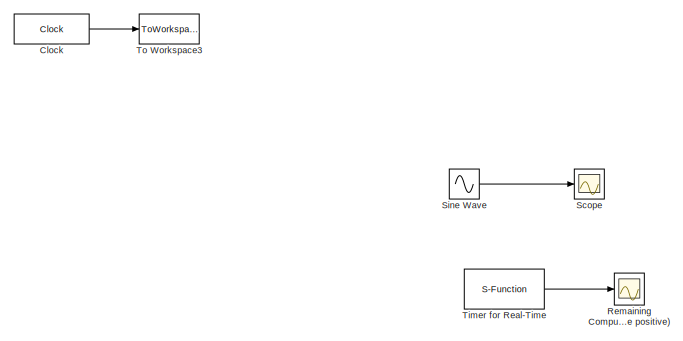
[diagram: root canvas - part 1/4, top center region]
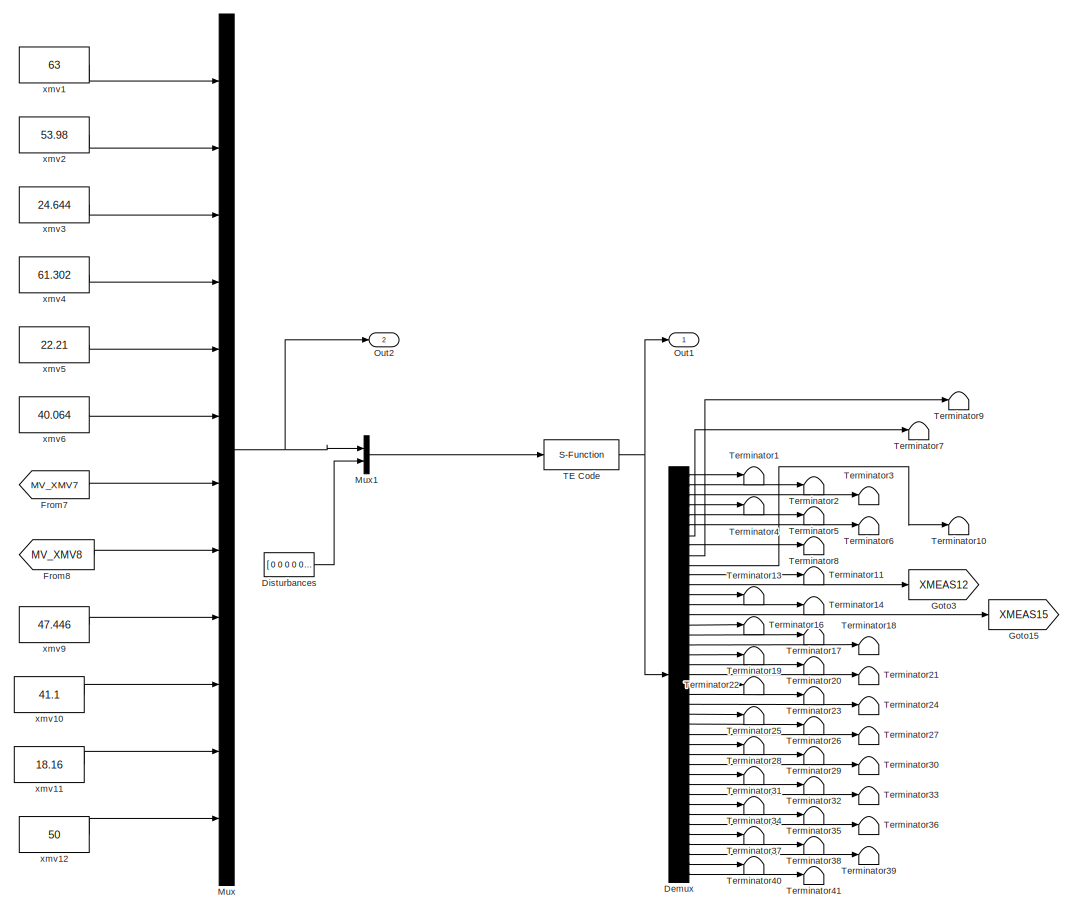
[diagram: root canvas - part 2/4, central region]
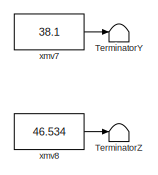
[diagram: root canvas - part 3/4, bottom left region]
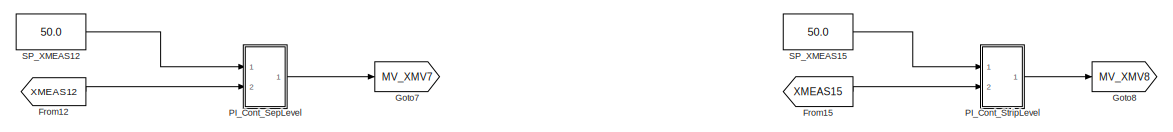
[diagram: root canvas - part 4/4, bottom center region]
MODEL slx_0b31a769cb95
KIND model
CONFIG AbsTol = auto
CONFIG EnableMultiTasking = on
CONFIG FixedStep = 1e-4
CONFIG MaxStep = 1e-3
CONFIG MinStep = auto
CONFIG PreLoadFcn = tesys_init
CONFIG RelTol = 1e-3
CONFIG SampleTimeConstraint = Unconstrained
CONFIG Solver = VariableStepAuto
CONFIG SolverName = VariableStepAuto
CONFIG StartTime = 0.0
CONFIG StopTime = 50
BLOCK [Clock] Clock
  DisplayTime = on
BLOCK [Demux] Demux
  DisplayOption = bar
  Outputs = 41
  Ports = [1, 41]
BLOCK [Constant] Disturbances
  Value = [ 0 0 0 0 0 0 0 1 zeros(1,20)]
BLOCK [From] From12
  GotoTag = XMEAS12
BLOCK [From] From15
  GotoTag = XMEAS15
BLOCK [From] From7
  GotoTag = MV_XMV7
BLOCK [From] From8
  GotoTag = MV_XMV8
BLOCK [Goto] Goto15
  GotoTag = XMEAS15
BLOCK [Goto] Goto3
  GotoTag = XMEAS12
BLOCK [Goto] Goto7 
  GotoTag = MV_XMV7
BLOCK [Goto] Goto8
  GotoTag = MV_XMV8
BLOCK [Mux] Mux
  DisplayOption = bar
  Inputs = 12
  Ports = [12, 1]
BLOCK [Mux] Mux1
  DisplayOption = bar
  Inputs = 2
  Ports = [2, 1]
BLOCK [Outport] Out1
  IconDisplay = Port number
BLOCK [Outport] Out2
  IconDisplay = Port number
  Port = 2
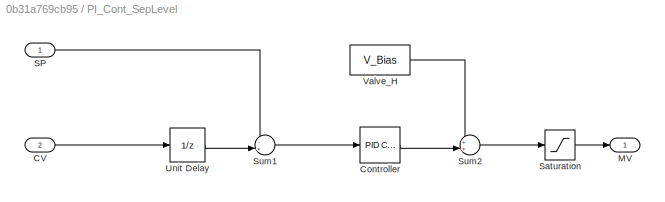
BLOCK [SubSystem] PI_Cont_SepLevel
  Ports = [2, 1]
  RequestExecContextInheritance = off
BLOCK [Inport] PI_Cont_SepLevel/CV
  IconDisplay = Port number
  Port = 2
BLOCK [Reference] PI_Cont_SepLevel/Controller  REF=simulink/Continuous/PID Controller
  Ports = [1, 1]
  SourceBlock = simulink/Continuous/PID Controller
  SourceProductBaseCode = SL
  SourceProductName = Simulink
  SourceType = PID 1dof
BLOCK [Outport] PI_Cont_SepLevel/MV
  IconDisplay = Port number
BLOCK [Inport] PI_Cont_SepLevel/SP
  IconDisplay = Port number
BLOCK [Saturate] PI_Cont_SepLevel/Saturation
  InputPortMap = u0
  LowerLimit = V_Low
  Ports = [1, 1]
  UpperLimit = V_High
BLOCK [Sum] PI_Cont_SepLevel/Sum1
  IconShape = round
  Inputs = -+|
  OutDataTypeStr = double
  Ports = [2, 1]
  SaturateOnIntegerOverflow = off
BLOCK [Sum] PI_Cont_SepLevel/Sum2
  IconShape = round
  InputSameDT = off
  Inputs = ++|
  OutDataTypeStr = double
  Ports = [2, 1]
  SaturateOnIntegerOverflow = off
BLOCK [UnitDelay] PI_Cont_SepLevel/Unit Delay
  HasFrameUpgradeWarning = on
  InitialCondition = 45
  SampleTime = -1
BLOCK [Constant] PI_Cont_SepLevel/Valve_H
  Value = V_Bias
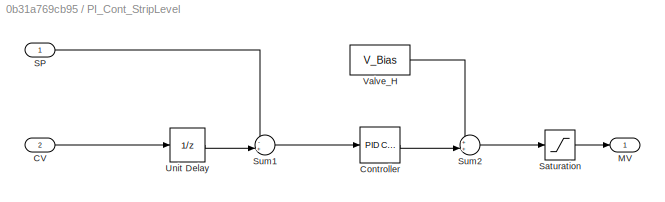
BLOCK [SubSystem] PI_Cont_StripLevel
  Ports = [2, 1]
  RequestExecContextInheritance = off
BLOCK [Inport] PI_Cont_StripLevel/CV
  IconDisplay = Port number
  Port = 2
BLOCK [Reference] PI_Cont_StripLevel/Controller  REF=simulink/Continuous/PID Controller
  Ports = [1, 1]
  SourceBlock = simulink/Continuous/PID Controller
  SourceProductBaseCode = SL
  SourceProductName = Simulink
  SourceType = PID 1dof
BLOCK [Outport] PI_Cont_StripLevel/MV
  IconDisplay = Port number
BLOCK [Inport] PI_Cont_StripLevel/SP
  IconDisplay = Port number
BLOCK [Saturate] PI_Cont_StripLevel/Saturation
  InputPortMap = u0
  LowerLimit = V_Low
  Ports = [1, 1]
  UpperLimit = V_High
BLOCK [Sum] PI_Cont_StripLevel/Sum1
  IconShape = round
  Inputs = -+|
  OutDataTypeStr = double
  Ports = [2, 1]
  SaturateOnIntegerOverflow = off
BLOCK [Sum] PI_Cont_StripLevel/Sum2
  IconShape = round
  InputSameDT = off
  Inputs = ++|
  OutDataTypeStr = double
  Ports = [2, 1]
  SaturateOnIntegerOverflow = off
BLOCK [UnitDelay] PI_Cont_StripLevel/Unit Delay
  HasFrameUpgradeWarning = on
  InitialCondition = 45
  SampleTime = -1
BLOCK [Constant] PI_Cont_StripLevel/Valve_H
  Value = V_Bias
BLOCK [Scope] Remaining Computation Time (must be positive)
  Floating = off
  NumInputPorts = 1
  Ports = [1]
  ScopeSpecificationString = Simulink.scopes.TimeScopeBlockCfg('CurrentConfiguration', extmgr.ConfigurationSet(extmgr.Configuration('Core','General UI',true),extmgr.Configuration('Core','Source UI',true),extmgr.Configuration('Sources','WiredSimulink',true,'DataLoggingVariableName','ScopeData1','DataLoggingSaveFormat','StructureWithTime','DataLoggingLimitDataPoints',true,'DataLoggingDecimation','1','DataLoggingDecimateData',tr...<+1709ch>
BLOCK [Constant] SP_XMEAS12
  OutDataTypeStr = double
  Value = 50.0
BLOCK [Constant] SP_XMEAS15
  OutDataTypeStr = double
  Value = 50.0
BLOCK [Scope] Scope
  Floating = off
  NumInputPorts = 1
  Ports = [1]
  ScopeSpecificationString = Simulink.scopes.TimeScopeBlockCfg('CurrentConfiguration', extmgr.ConfigurationSet(extmgr.Configuration('Core','General UI',true),extmgr.Configuration('Core','Source UI',true),extmgr.Configuration('Sources','WiredSimulink',true,'DataLoggingSaveFormat','Array','DataLoggingDecimation','1','DataLoggingDecimateData',true),extmgr.Configuration('Visuals','Time Domain',true,'TimeAxisLabels','All','Seriali...<+1631ch>
BLOCK [Sin] Sine Wave
  Ports = [0, 1]
  SampleTime = 0
BLOCK [S-Function] TE Code
  EnableBusSupport = off
  FunctionName = temexd_mod
  Parameters = [], [], 0
  Ports = [1, 1]
  SFcnIsStateOwnerBlock = off
  SFunctionDeploymentMode = off
BLOCK [Terminator] Terminator1
BLOCK [Terminator] Terminator10
BLOCK [Terminator] Terminator11
BLOCK [Terminator] Terminator13
BLOCK [Terminator] Terminator14
BLOCK [Terminator] Terminator16
BLOCK [Terminator] Terminator17
BLOCK [Terminator] Terminator18
BLOCK [Terminator] Terminator19
BLOCK [Terminator] Terminator2
BLOCK [Terminator] Terminator20
BLOCK [Terminator] Terminator21
BLOCK [Terminator] Terminator22
BLOCK [Terminator] Terminator23
BLOCK [Terminator] Terminator24
BLOCK [Terminator] Terminator25
BLOCK [Terminator] Terminator26
BLOCK [Terminator] Terminator27
BLOCK [Terminator] Terminator28
BLOCK [Terminator] Terminator29
BLOCK [Terminator] Terminator3
BLOCK [Terminator] Terminator30
BLOCK [Terminator] Terminator31
BLOCK [Terminator] Terminator32
BLOCK [Terminator] Terminator33
BLOCK [Terminator] Terminator34
BLOCK [Terminator] Terminator35
BLOCK [Terminator] Terminator36
BLOCK [Terminator] Terminator37
BLOCK [Terminator] Terminator38
BLOCK [Terminator] Terminator39
BLOCK [Terminator] Terminator4
BLOCK [Terminator] Terminator40
BLOCK [Terminator] Terminator41
BLOCK [Terminator] Terminator5
BLOCK [Terminator] Terminator6
BLOCK [Terminator] Terminator7
BLOCK [Terminator] Terminator8
BLOCK [Terminator] Terminator9
BLOCK [Terminator] TerminatorY
BLOCK [Terminator] TerminatorZ
BLOCK [S-Function] Timer for Real-Time
  EnableBusSupport = off
  FunctionName = sfun_rttime
  Parameters = 100
  Ports = [0, 1]
  SFcnIsStateOwnerBlock = off
  SFunctionDeploymentMode = off
BLOCK [ToWorkspace] To Workspace3
  MaxDataPoints = inf
  Ports = [1]
  SampleTime = Ts_save
  VariableName = tout2
BLOCK [Constant] xmv1
  Value = 63
BLOCK [Constant] xmv10
  Value = 41.1
BLOCK [Constant] xmv11
  Value = 18.16
BLOCK [Constant] xmv12
  Value = 50
BLOCK [Constant] xmv2
  Value = 53.98
BLOCK [Constant] xmv3
  Value = 24.644
BLOCK [Constant] xmv4
  Value = 61.302
BLOCK [Constant] xmv5
  Value = 22.21
BLOCK [Constant] xmv6
  Value = 40.064
BLOCK [Constant] xmv7
  Value = 38.1
BLOCK [Constant] xmv8
  Value = 46.534
BLOCK [Constant] xmv9
  Value = 47.446
LINE Clock:1 -> To Workspace3:1
LINE Demux:1 -> Terminator1:1
LINE Demux:10 -> Terminator10:1
LINE Demux:11 -> Terminator11:1
LINE Demux:12 -> Goto3:1
LINE Demux:13 -> Terminator13:1
LINE Demux:14 -> Terminator14:1
LINE Demux:15 -> Goto15:1
LINE Demux:16 -> Terminator16:1
LINE Demux:17 -> Terminator17:1
LINE Demux:18 -> Terminator18:1
LINE Demux:19 -> Terminator19:1
LINE Demux:2 -> Terminator2:1
LINE Demux:20 -> Terminator20:1
LINE Demux:21 -> Terminator21:1
LINE Demux:22 -> Terminator22:1
LINE Demux:23 -> Terminator23:1
LINE Demux:24 -> Terminator24:1
LINE Demux:25 -> Terminator25:1
LINE Demux:26 -> Terminator26:1
LINE Demux:27 -> Terminator27:1
LINE Demux:28 -> Terminator28:1
LINE Demux:29 -> Terminator29:1
LINE Demux:3 -> Terminator3:1
LINE Demux:30 -> Terminator30:1
LINE Demux:31 -> Terminator31:1
LINE Demux:32 -> Terminator32:1
LINE Demux:33 -> Terminator33:1
LINE Demux:34 -> Terminator34:1
LINE Demux:35 -> Terminator35:1
LINE Demux:36 -> Terminator36:1
LINE Demux:37 -> Terminator37:1
LINE Demux:38 -> Terminator38:1
LINE Demux:39 -> Terminator39:1
LINE Demux:4 -> Terminator4:1
LINE Demux:40 -> Terminator40:1
LINE Demux:41 -> Terminator41:1
LINE Demux:5 -> Terminator5:1
LINE Demux:6 -> Terminator6:1
LINE Demux:7 -> Terminator7:1
LINE Demux:8 -> Terminator8:1
LINE Demux:9 -> Terminator9:1
LINE Disturbances:1 -> Mux1:2
LINE From12:1 -> PI_Cont_SepLevel:2
LINE From15:1 -> PI_Cont_StripLevel:2
LINE From7:1 -> Mux:7
LINE From8:1 -> Mux:8
LINE Mux1:1 -> TE Code:1
NET Mux:1 -> Mux1:1, Out2:1
LINE PI_Cont_SepLevel/CV:1 -> PI_Cont_SepLevel/Unit Delay:1
LINE PI_Cont_SepLevel/Controller:1 -> PI_Cont_SepLevel/Sum2:2
LINE PI_Cont_SepLevel/SP:1 -> PI_Cont_SepLevel/Sum1:1
LINE PI_Cont_SepLevel/Saturation:1 -> PI_Cont_SepLevel/MV:1
LINE PI_Cont_SepLevel/Sum1:1 -> PI_Cont_SepLevel/Controller:1
LINE PI_Cont_SepLevel/Sum2:1 -> PI_Cont_SepLevel/Saturation:1
LINE PI_Cont_SepLevel/Unit Delay:1 -> PI_Cont_SepLevel/Sum1:2
LINE PI_Cont_SepLevel/Valve_H:1 -> PI_Cont_SepLevel/Sum2:1
LINE PI_Cont_SepLevel:1 -> Goto7 :1
LINE PI_Cont_StripLevel/CV:1 -> PI_Cont_StripLevel/Unit Delay:1
LINE PI_Cont_StripLevel/Controller:1 -> PI_Cont_StripLevel/Sum2:2
LINE PI_Cont_StripLevel/SP:1 -> PI_Cont_StripLevel/Sum1:1
LINE PI_Cont_StripLevel/Saturation:1 -> PI_Cont_StripLevel/MV:1
LINE PI_Cont_StripLevel/Sum1:1 -> PI_Cont_StripLevel/Controller:1
LINE PI_Cont_StripLevel/Sum2:1 -> PI_Cont_StripLevel/Saturation:1
LINE PI_Cont_StripLevel/Unit Delay:1 -> PI_Cont_StripLevel/Sum1:2
LINE PI_Cont_StripLevel/Valve_H:1 -> PI_Cont_StripLevel/Sum2:1
LINE PI_Cont_StripLevel:1 -> Goto8:1
LINE SP_XMEAS12:1 -> PI_Cont_SepLevel:1
LINE SP_XMEAS15:1 -> PI_Cont_StripLevel:1
LINE Sine Wave:1 -> Scope:1
NET TE Code:1 -> Demux:1, Out1:1
LINE Timer for Real-Time:1 -> Remaining Computation Time (must be positive):1
LINE xmv10:1 -> Mux:10
LINE xmv11:1 -> Mux:11
LINE xmv12:1 -> Mux:12
LINE xmv1:1 -> Mux:1
LINE xmv2:1 -> Mux:2
LINE xmv3:1 -> Mux:3
LINE xmv4:1 -> Mux:4
LINE xmv5:1 -> Mux:5
LINE xmv6:1 -> Mux:6
LINE xmv7:1 -> TerminatorY:1
LINE xmv8:1 -> TerminatorZ:1
LINE xmv9:1 -> Mux:9
note: NET lines group one-source signal fan-out (src -> all destinations, sorted); 1:1 wires keep LINE
